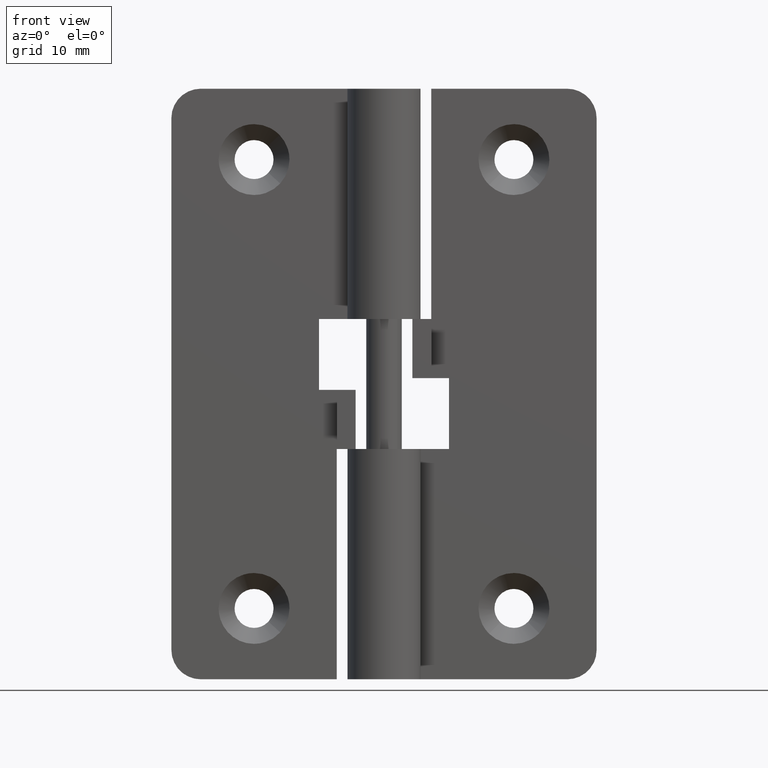
[diagram: clean part render]
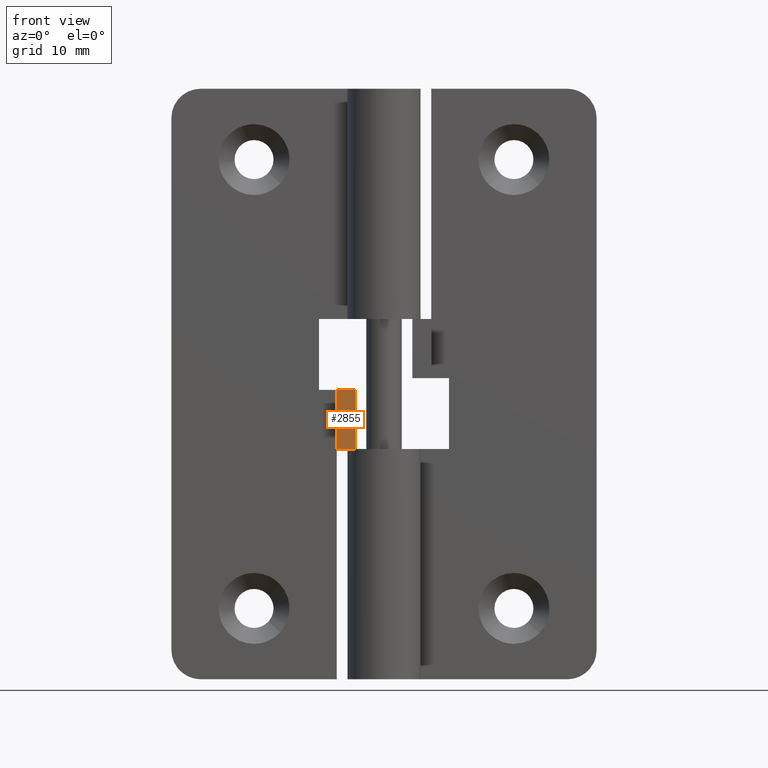
[diagram: same view with one face highlighted and labeled with its STEP entity id]
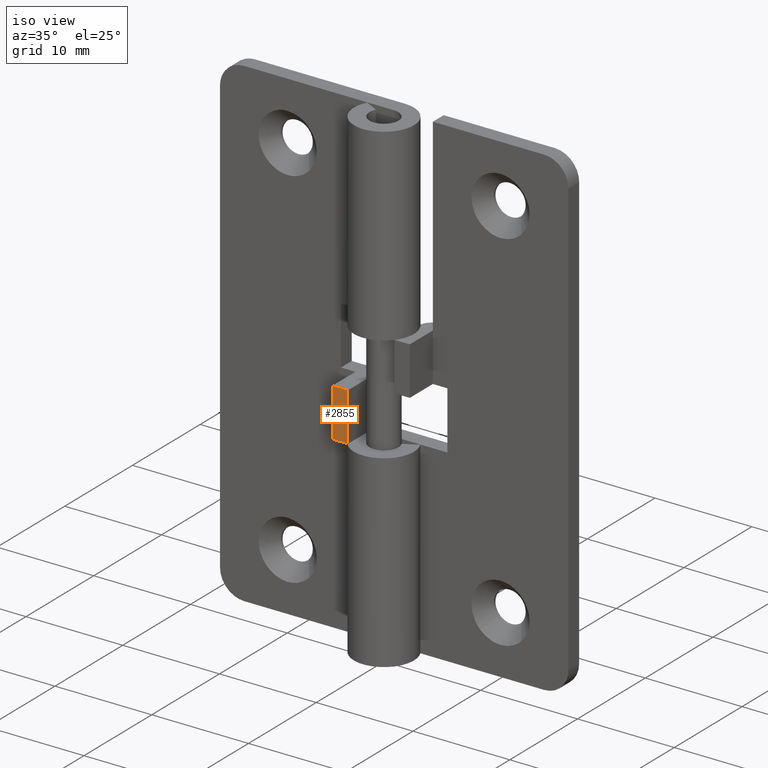
[diagram: same view with one face highlighted and labeled with its STEP entity id]
A machine part, front view. The second image highlights one B-rep face of the part: STEP entity #2855.
A second angle (iso view) of the same face is appended — the face is thin or edge-on in the first view.
In plain terms, the highlighted face is a freeform B-spline surface patch.
Its self-contained STEP definition (entity closure, byte-faithful):
#2820=CARTESIAN_POINT('',(-4.079919941232571,-1.899998000000000,19.250250009690969));
#2821=CARTESIAN_POINT('',(-2.320081130292958,-1.899998000000000,19.250250009690969));
#2822=CARTESIAN_POINT('',(-4.079919941232571,-1.899998000000000,24.749750124419482));
#2823=CARTESIAN_POINT('',(-2.320081130292958,-1.899998000000000,24.749750124419482));
#2824=B_SPLINE_SURFACE_WITH_KNOTS('',1,1,((#2820,#2822),(#2821,#2823)),.UNSPECIFIED.,.F.,.F.,.U.,(2,2),(2,2),(0.041708337925747,0.958291624821350),(0.0,5.499500114728509),.UNSPECIFIED.);
#2825=CARTESIAN_POINT('',(-4.0,-1.899997999999960,24.500000000000000));
#2826=VERTEX_POINT('',#2825);
#2827=CARTESIAN_POINT('',(-2.400001000000000,-1.899997999999960,24.500000000000000));
#2828=VERTEX_POINT('',#2827);
#2829=CARTESIAN_POINT('',(-4.0,-1.899997999999960,24.500000000000000));
#2830=CARTESIAN_POINT('',(-2.400001000000000,-1.899997999999960,24.500000000000000));
#2831=QUASI_UNIFORM_CURVE('',1,(#2829,#2830),.UNSPECIFIED.,.F.,.U.);
#2832=EDGE_CURVE('',#2826,#2828,#2831,.T.);
#2833=ORIENTED_EDGE('',*,*,#2832,.F.);
#2834=CARTESIAN_POINT('',(-4.0,-1.899997999999960,19.500000000000000));
#2835=VERTEX_POINT('',#2834);
#2836=CARTESIAN_POINT('',(-4.0,-1.899997999999960,19.500000000000000));
#2837=CARTESIAN_POINT('',(-4.0,-1.899997999999960,24.500000000000000));
#2838=QUASI_UNIFORM_CURVE('',1,(#2836,#2837),.UNSPECIFIED.,.F.,.U.);
#2839=EDGE_CURVE('',#2835,#2826,#2838,.T.);
#2840=ORIENTED_EDGE('',*,*,#2839,.F.);
#2841=CARTESIAN_POINT('',(-2.400001000000000,-1.899997999999960,19.500000000000000));
#2842=VERTEX_POINT('',#2841);
#2843=CARTESIAN_POINT('',(-2.400001000000000,-1.899997999999960,19.500000000000000));
#2844=CARTESIAN_POINT('',(-4.0,-1.899997999999960,19.500000000000000));
#2845=QUASI_UNIFORM_CURVE('',1,(#2843,#2844),.UNSPECIFIED.,.F.,.U.);
#2846=EDGE_CURVE('',#2842,#2835,#2845,.T.);
#2847=ORIENTED_EDGE('',*,*,#2846,.F.);
#2848=CARTESIAN_POINT('',(-2.400001000000000,-1.899997999999960,24.500000000000000));
#2849=CARTESIAN_POINT('',(-2.400001000000000,-1.899997999999960,19.500000000000000));
#2850=QUASI_UNIFORM_CURVE('',1,(#2848,#2849),.UNSPECIFIED.,.F.,.U.);
#2851=EDGE_CURVE('',#2828,#2842,#2850,.T.);
#2852=ORIENTED_EDGE('',*,*,#2851,.F.);
#2853=EDGE_LOOP('',(#2833,#2840,#2847,#2852));
#2854=FACE_OUTER_BOUND('',#2853,.T.);
#2855=ADVANCED_FACE('',(#2854),#2824,.T.);